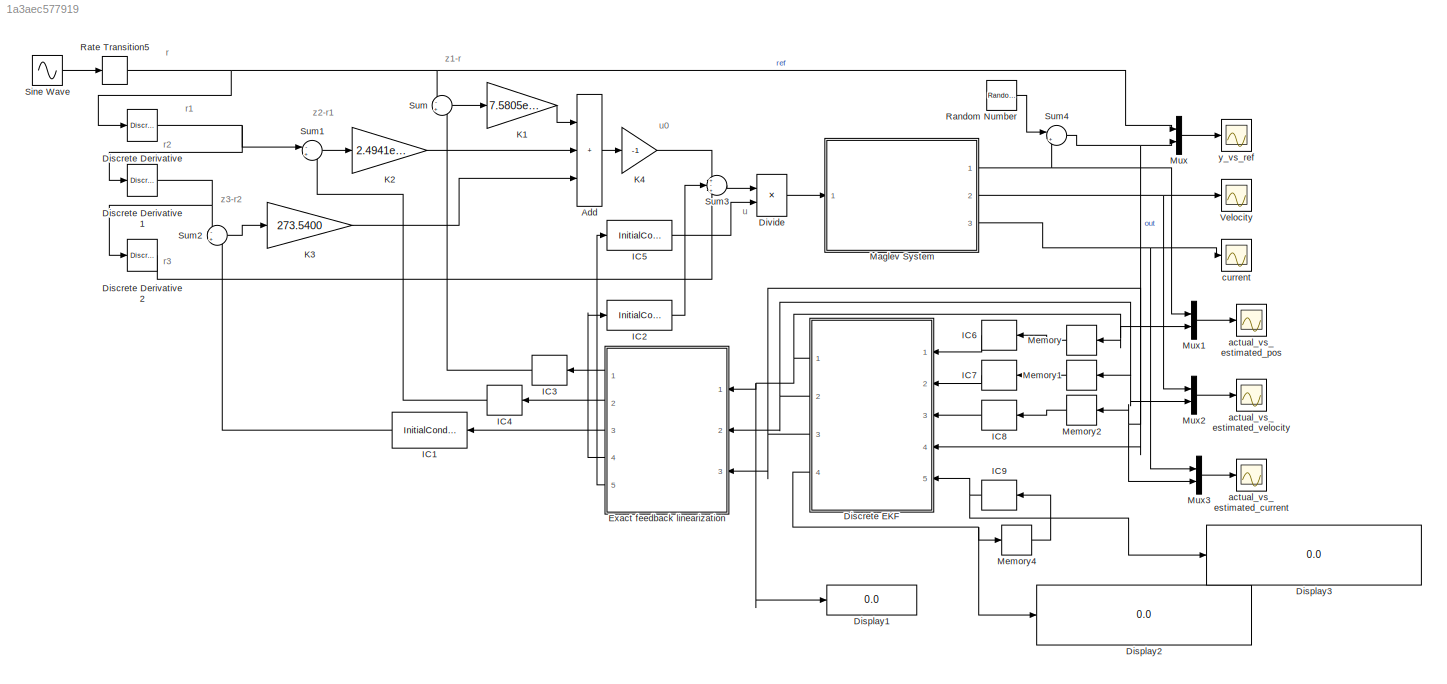
MODEL slx_1a3aec577919
KIND model
CONFIG AbsTol = auto
CONFIG EnableMultiTasking = off
CONFIG FixedStep = 0.5
CONFIG MaxStep = auto
CONFIG MinStep = auto
CONFIG RelTol = 1e-3
CONFIG SampleTimeConstraint = Unconstrained
CONFIG SolverName = FixedStepAuto
CONFIG StartTime = 0.0
CONFIG StopTime = 2
BLOCK [Sum] Add
  IconShape = rectangular
  Inputs = +++
  Ports = [3, 1]
BLOCK [Reference] Discrete Derivative  REF=simulink/Discrete/Discrete Derivative
  Ports = [1, 1]
  SourceBlock = simulink/Discrete/Discrete Derivative
  SourceProductBaseCode = SL
  SourceType = Discrete Derivative
BLOCK [Reference] Discrete Derivative1  REF=simulink/Discrete/Discrete Derivative
  Ports = [1, 1]
  SourceBlock = simulink/Discrete/Discrete Derivative
  SourceProductBaseCode = SL
  SourceType = Discrete Derivative
BLOCK [Reference] Discrete Derivative2  REF=simulink/Discrete/Discrete Derivative
  Ports = [1, 1]
  SourceBlock = simulink/Discrete/Discrete Derivative
  SourceProductBaseCode = SL
  SourceType = Discrete Derivative
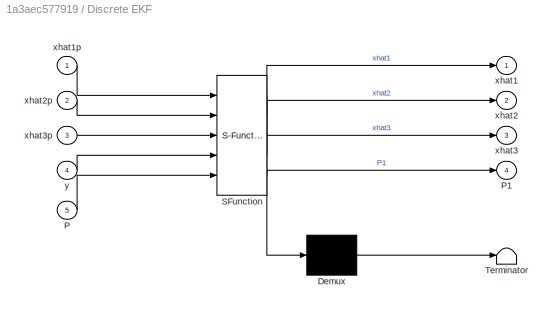
BLOCK [SubSystem] Discrete EKF
  ErrorFcn = Stateflow.Translate.translate
  PermitHierarchicalResolution = ExplicitOnly
  Ports = [5, 4]
  RequestExecContextInheritance = off
  SFBlockType = MATLAB Function
  TreatAsAtomicUnit = on
BLOCK [Demux] Discrete EKF/ Demux 
  Outputs = 1
  Ports = [1, 1]
BLOCK [S-Function] Discrete EKF/ SFunction 
  EnableBusSupport = on
  FunctionName = sf_sfun
  PortCounts = [5 5]
  Ports = [5, 5]
  SFcnIsStateOwnerBlock = off
  SFunctionDeploymentMode = off
  Tag = Stateflow S-Function 2
BLOCK [Terminator] Discrete EKF/ Terminator 
BLOCK [Inport] Discrete EKF/P
  Port = 5
BLOCK [Outport] Discrete EKF/P1
  Port = 4
BLOCK [Outport] Discrete EKF/xhat1
BLOCK [Inport] Discrete EKF/xhat1p
BLOCK [Outport] Discrete EKF/xhat2
  Port = 2
BLOCK [Inport] Discrete EKF/xhat2p
  Port = 2
BLOCK [Outport] Discrete EKF/xhat3
  Port = 3
BLOCK [Inport] Discrete EKF/xhat3p
  Port = 3
BLOCK [Inport] Discrete EKF/y
  Port = 4
BLOCK [Display] Display1
  Decimation = 1
  Ports = [1]
BLOCK [Display] Display2
  Decimation = 1
  Ports = [1]
BLOCK [Display] Display3
  Decimation = 1
  Ports = [1]
BLOCK [Product] Divide
  Inputs = */
  Ports = [2, 1]
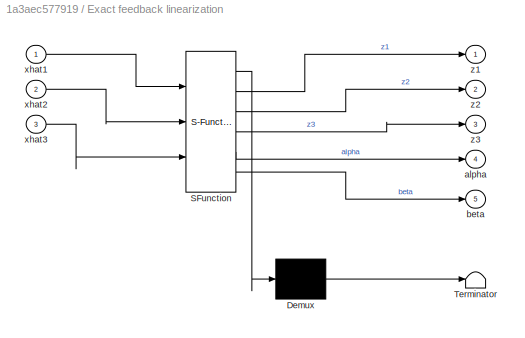
BLOCK [SubSystem] Exact feedback linearization 
  ErrorFcn = Stateflow.Translate.translate
  PermitHierarchicalResolution = ExplicitOnly
  Ports = [3, 5]
  RequestExecContextInheritance = off
  SFBlockType = MATLAB Function
  TreatAsAtomicUnit = on
BLOCK [Demux] Exact feedback linearization / Demux 
  Outputs = 1
  Ports = [1, 1]
BLOCK [S-Function] Exact feedback linearization / SFunction 
  EnableBusSupport = on
  FunctionName = sf_sfun
  PortCounts = [3 6]
  Ports = [3, 6]
  SFcnIsStateOwnerBlock = off
  SFunctionDeploymentMode = off
  Tag = Stateflow S-Function 1
BLOCK [Terminator] Exact feedback linearization / Terminator 
BLOCK [Outport] Exact feedback linearization /alpha
  Port = 4
BLOCK [Outport] Exact feedback linearization /beta
  Port = 5
BLOCK [Inport] Exact feedback linearization /xhat1
BLOCK [Inport] Exact feedback linearization /xhat2
  Port = 2
BLOCK [Inport] Exact feedback linearization /xhat3
  Port = 3
BLOCK [Outport] Exact feedback linearization /z1
BLOCK [Outport] Exact feedback linearization /z2
  Port = 2
BLOCK [Outport] Exact feedback linearization /z3
  Port = 3
BLOCK [InitialCondition] IC1
  Value = 1.7764e-15
BLOCK [InitialCondition] IC2
  Value = -102.8932
BLOCK [InitialCondition] IC3
  Value = 0.0095
BLOCK [InitialCondition] IC4
  Value = 0
BLOCK [InitialCondition] IC5
  Value = 1.9015e+03
BLOCK [InitialCondition] IC6
  Value = 0.0095
BLOCK [InitialCondition] IC7
  Value = 0
BLOCK [InitialCondition] IC8
  Value = 0.8400
BLOCK [InitialCondition] IC9
  Value = [0.1 0 0;0 0.1 0;0 0 0.1]
BLOCK [Gain] K1
  Gain = 7.5805e+05
BLOCK [Gain] K2
  Gain = 2.4941e+04
BLOCK [Gain] K3
  Gain = 273.5400
BLOCK [Gain] K4
  Gain = -1
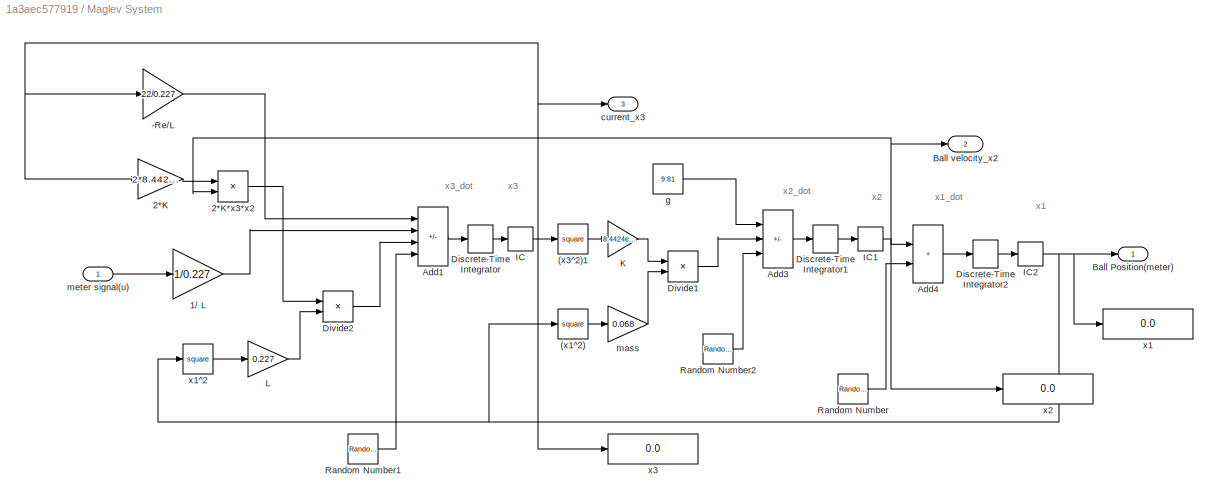
BLOCK [SubSystem] Maglev System
  Ports = [1, 3]
  RequestExecContextInheritance = off
BLOCK [Math] Maglev System/(x1^2)
  Operator = square
  Ports = [1, 1]
BLOCK [Math] Maglev System/(x3^2)1
  Operator = square
  Ports = [1, 1]
BLOCK [Gain] Maglev System/-Re//L
  Gain = 22/0.227
BLOCK [Gain] Maglev System/1//	L
  Gain = 1/0.227
BLOCK [Gain] Maglev System/2*K
  Gain = 2*8.4424e-05
BLOCK [Product] Maglev System/2*K*x3*x2
  Ports = [2, 1]
BLOCK [Sum] Maglev System/Add1
  IconShape = rectangular
  Inputs = -+++
  Ports = [4, 1]
BLOCK [Sum] Maglev System/Add3
  IconShape = rectangular
  Inputs = +-+
  Ports = [3, 1]
BLOCK [Sum] Maglev System/Add4
  IconShape = rectangular
  Ports = [2, 1]
BLOCK [Outport] Maglev System/Ball Position(meter)
BLOCK [Outport] Maglev System/Ball velocity_x2
  Port = 2
BLOCK [DiscreteIntegrator] Maglev System/Discrete-Time Integrator
  ICPrevOutput = DiscIntNeverNeededParam
  ICPrevScaledInput = DiscIntNeverNeededParam
  InitialConditionSetting = Auto
  Ports = [1, 1]
  SampleTime = -1
BLOCK [DiscreteIntegrator] Maglev System/Discrete-Time Integrator1
  ICPrevOutput = DiscIntNeverNeededParam
  ICPrevScaledInput = DiscIntNeverNeededParam
  InitialConditionSetting = Auto
  Ports = [1, 1]
  SampleTime = -1
BLOCK [DiscreteIntegrator] Maglev System/Discrete-Time Integrator2
  ICPrevOutput = DiscIntNeverNeededParam
  ICPrevScaledInput = DiscIntNeverNeededParam
  InitialConditionSetting = Auto
  Ports = [1, 1]
  SampleTime = -1
BLOCK [Product] Maglev System/Divide1
  Inputs = */
  Ports = [2, 1]
BLOCK [Product] Maglev System/Divide2
  Inputs = */
  Ports = [2, 1]
BLOCK [InitialCondition] Maglev System/IC
  Value = 0.8
BLOCK [InitialCondition] Maglev System/IC1
  Value = 0
BLOCK [InitialCondition] Maglev System/IC2
  Value = 0.009
BLOCK [Gain] Maglev System/K
  Gain = 8.4424e-05
BLOCK [Gain] Maglev System/L
  Gain = 0.227
BLOCK [RandomNumber] Maglev System/Random Number
  SampleTime = 0.5
  Variance = 0.0001
BLOCK [RandomNumber] Maglev System/Random Number1
  SampleTime = 0.5
  Variance = 0.0001
BLOCK [RandomNumber] Maglev System/Random Number2
  SampleTime = 0.5
  Variance = 0.0001
BLOCK [Outport] Maglev System/current_x3
  Port = 3
BLOCK [Constant] Maglev System/g
  SampleTime = 0.5
  Value = 9.81
BLOCK [Gain] Maglev System/mass
  Gain = 0.068
BLOCK [Inport] Maglev System/meter signal(u)
BLOCK [Display] Maglev System/x1
  Decimation = 1
  Ports = [1]
BLOCK [Math] Maglev System/x1^2
  Operator = square
  Ports = [1, 1]
BLOCK [Display] Maglev System/x2
  Decimation = 1
  Ports = [1]
BLOCK [Display] Maglev System/x3
  Decimation = 1
  Ports = [1]
BLOCK [Memory] Memory
BLOCK [Memory] Memory1
BLOCK [Memory] Memory2
BLOCK [Memory] Memory4
BLOCK [Mux] Mux
  DisplayOption = bar
  Inputs = 2
  Ports = [2, 1]
BLOCK [Mux] Mux1
  DisplayOption = bar
  Inputs = 2
  Ports = [2, 1]
BLOCK [Mux] Mux2
  DisplayOption = bar
  Inputs = 2
  Ports = [2, 1]
BLOCK [Mux] Mux3
  DisplayOption = bar
  Inputs = 2
  Ports = [2, 1]
BLOCK [RandomNumber] Random Number
  SampleTime = 0.5
  Variance = 5e-6
BLOCK [RateTransition] Rate Transition5
  OutPortSampleTime = 0.5
BLOCK [Sin] Sine Wave
  Ports = [0, 1]
  SampleTime = 0
BLOCK [Sum] Sum
  Inputs = -+
  Ports = [2, 1]
BLOCK [Sum] Sum1
  Inputs = -+
  Ports = [2, 1]
BLOCK [Sum] Sum2
  Inputs = -+
  Ports = [2, 1]
BLOCK [Sum] Sum3
  Inputs = +-+
  Ports = [3, 1]
BLOCK [Sum] Sum4
  Inputs = |++
  NameLocation = top
  Ports = [2, 1]
BLOCK [Scope] Velocity
  Floating = off
  NumInputPorts = 1
  Ports = [1]
  ScopeSpecificationString = Simulink.scopes.TimeScopeBlockCfg('CurrentConfiguration', extmgr.ConfigurationSet(extmgr.Configuration('Core','General UI',true),extmgr.Configuration('Core','Source UI',true),extmgr.Configuration('Sources','WiredSimulink',true,'DataLoggingVariableName','ScopeData1'),extmgr.Configuration('Visuals','Time Domain',true,'SerializedDisplays',{struct('MinYLimReal','-45431.80941','MaxYLimReal','5047.98551...<+1437ch>
BLOCK [Scope] actual_vs_estimated_current
  Floating = off
  NumInputPorts = 1
  Ports = [1]
  ScopeSpecificationString = Simulink.scopes.TimeScopeBlockCfg('CurrentConfiguration', extmgr.ConfigurationSet(extmgr.Configuration('Core','General UI',true),extmgr.Configuration('Core','Source UI',true),extmgr.Configuration('Sources','WiredSimulink',true,'DataLoggingVariableName','ScopeData5'),extmgr.Configuration('Visuals','Time Domain',true,'SerializedDisplays',{struct('MinYLimReal','-1.00000','MaxYLimReal','1.00000','YLab...<+1395ch>
BLOCK [Scope] actual_vs_estimated_pos
  Floating = off
  NumInputPorts = 1
  Ports = [1]
  ScopeSpecificationString = Simulink.scopes.TimeScopeBlockCfg('CurrentConfiguration', extmgr.ConfigurationSet(extmgr.Configuration('Core','General UI',true),extmgr.Configuration('Core','Source UI',true),extmgr.Configuration('Sources','WiredSimulink',true,'DataLoggingVariableName','ScopeData3'),extmgr.Configuration('Visuals','Time Domain',true,'SerializedDisplays',{struct('MinYLimReal','-22715.89194','MaxYLimReal','2524.00129...<+1450ch>
BLOCK [Scope] actual_vs_estimated_velocity
  Floating = off
  NumInputPorts = 1
  Ports = [1]
  ScopeSpecificationString = Simulink.scopes.TimeScopeBlockCfg('CurrentConfiguration', extmgr.ConfigurationSet(extmgr.Configuration('Core','General UI',true),extmgr.Configuration('Core','Source UI',true),extmgr.Configuration('Sources','WiredSimulink',true,'DataLoggingVariableName','ScopeData4'),extmgr.Configuration('Visuals','Time Domain',true,'SerializedDisplays',{struct('MinYLimReal','-16780523121095790907325396438965414729...<+1839ch>
BLOCK [Scope] current
  Floating = off
  NumInputPorts = 1
  Ports = [1]
  ScopeSpecificationString = Simulink.scopes.TimeScopeBlockCfg('CurrentConfiguration', extmgr.ConfigurationSet(extmgr.Configuration('Core','General UI',true),extmgr.Configuration('Core','Source UI',true),extmgr.Configuration('Sources','WiredSimulink',true,'DataLoggingVariableName','ScopeData2'),extmgr.Configuration('Visuals','Time Domain',true,'SerializedDisplays',{struct('MinYLimReal','-52.95643','MaxYLimReal','6.77294','YLa...<+1413ch>
BLOCK [Scope] y_vs_ref
  Floating = off
  NumInputPorts = 1
  Ports = [1]
  ScopeSpecificationString = Simulink.scopes.TimeScopeBlockCfg('CurrentConfiguration', extmgr.ConfigurationSet(extmgr.Configuration('Core','General UI',true),extmgr.Configuration('Core','Source UI',true),extmgr.Configuration('Sources','WiredSimulink',true),extmgr.Configuration('Visuals','Time Domain',true,'SerializedDisplays',{struct('MinYLimReal','-22716.01424','MaxYLimReal','2525.10991','YLabelReal','','MinYLimMag','   0.00...<+1382ch>
ANNOTATION (root): u0
ANNOTATION (root): u
ANNOTATION (root): z2-r1
ANNOTATION (root): z3-r2
ANNOTATION (root): r1
ANNOTATION (root): r2
ANNOTATION (root): r3
ANNOTATION (root): r
ANNOTATION (root): z1-r
ANNOTATION Maglev System: x1
ANNOTATION Maglev System: x1_dot
ANNOTATION Maglev System: x2
ANNOTATION Maglev System: x2_dot
ANNOTATION Maglev System: x3
ANNOTATION Maglev System: x3_dot
LINE Add:1 -> K4:1
NET Discrete Derivative1:1 -> Discrete Derivative2:1, Sum2:1
LINE Discrete Derivative2:1 -> Sum3:3
NET Discrete Derivative:1 -> Discrete Derivative1:1, Sum1:1
NET Discrete EKF:1 -> Display1:1, Exact feedback linearization :1, Memory:1, Mux1:2
NET Discrete EKF:2 -> Exact feedback linearization :2, Memory1:1, Mux2:2
NET Discrete EKF:3 -> Exact feedback linearization :3, Memory2:1, Mux3:2
NET Discrete EKF:4 -> Display2:1, Memory4:1
LINE Divide:1 -> Maglev System:1
LINE Exact feedback linearization :1 -> IC3:1
LINE Exact feedback linearization :2 -> IC4:1
LINE Exact feedback linearization :3 -> IC1:1
LINE Exact feedback linearization :4 -> IC2:1
LINE Exact feedback linearization :5 -> IC5:1
LINE IC1:1 -> Sum2:2
LINE IC2:1 -> Sum3:2
LINE IC3:1 -> Sum:2
LINE IC4:1 -> Sum1:2
LINE IC5:1 -> Divide:2
LINE IC6:1 -> Discrete EKF:1
LINE IC7:1 -> Discrete EKF:2
LINE IC8:1 -> Discrete EKF:3
NET IC9:1 -> Discrete EKF:5, Display3:1
LINE K1:1 -> Add:1
LINE K2:1 -> Add:2
LINE K3:1 -> Add:3
LINE K4:1 -> Sum3:1
LINE Maglev System/(x1^2):1 -> Maglev System/mass:1
LINE Maglev System/(x3^2)1:1 -> Maglev System/K:1
LINE Maglev System/-Re//L:1 -> Maglev System/Add1:1
LINE Maglev System/1//	L:1 -> Maglev System/Add1:2
LINE Maglev System/2*K*x3*x2:1 -> Maglev System/Divide2:1
LINE Maglev System/2*K:1 -> Maglev System/2*K*x3*x2:1
LINE Maglev System/Add1:1 -> Maglev System/Discrete-Time Integrator:1
LINE Maglev System/Add3:1 -> Maglev System/Discrete-Time Integrator1:1
LINE Maglev System/Add4:1 -> Maglev System/Discrete-Time Integrator2:1
LINE Maglev System/Discrete-Time Integrator1:1 -> Maglev System/IC1:1
LINE Maglev System/Discrete-Time Integrator2:1 -> Maglev System/IC2:1
LINE Maglev System/Discrete-Time Integrator:1 -> Maglev System/IC:1
LINE Maglev System/Divide1:1 -> Maglev System/Add3:2
LINE Maglev System/Divide2:1 -> Maglev System/Add1:3
NET Maglev System/IC1:1 -> Maglev System/2*K*x3*x2:2, Maglev System/Add4:1, Maglev System/Ball velocity_x2:1, Maglev System/x2:1
NET Maglev System/IC2:1 -> Maglev System/(x1^2):1, Maglev System/Ball Position(meter):1, Maglev System/x1:1, Maglev System/x1^2:1
NET Maglev System/IC:1 -> Maglev System/(x3^2)1:1, Maglev System/-Re//L:1, Maglev System/2*K:1, Maglev System/current_x3:1, Maglev System/x3:1
LINE Maglev System/K:1 -> Maglev System/Divide1:1
LINE Maglev System/L:1 -> Maglev System/Divide2:2
LINE Maglev System/Random Number1:1 -> Maglev System/Add1:4
LINE Maglev System/Random Number2:1 -> Maglev System/Add3:3
LINE Maglev System/Random Number:1 -> Maglev System/Add4:2
LINE Maglev System/g:1 -> Maglev System/Add3:1
LINE Maglev System/mass:1 -> Maglev System/Divide1:2
LINE Maglev System/meter signal(u):1 -> Maglev System/1//	L:1
LINE Maglev System/x1^2:1 -> Maglev System/L:1
NET Maglev System:1 -> Mux1:1, Sum4:2
NET Maglev System:2 -> Mux2:1, Velocity:1
NET Maglev System:3 -> Mux3:1, current:1
LINE Memory1:1 -> IC7:1
LINE Memory2:1 -> IC8:1
LINE Memory4:1 -> IC9:1
LINE Memory:1 -> IC6:1
LINE Mux1:1 -> actual_vs_estimated_pos:1
LINE Mux2:1 -> actual_vs_estimated_velocity:1
LINE Mux3:1 -> actual_vs_estimated_current:1
LINE Mux:1 -> y_vs_ref:1
LINE Random Number:1 -> Sum4:1
NET Rate Transition5:1 -> Discrete Derivative:1, Mux:1, Sum:1
LINE Sine Wave:1 -> Rate Transition5:1
LINE Sum1:1 -> K2:1
LINE Sum2:1 -> K3:1
LINE Sum3:1 -> Divide:1
NET Sum4:1 -> Discrete EKF:4, Mux:2
LINE Sum:1 -> K1:1
note: NET lines group one-source signal fan-out (src -> all destinations, sorted); 1:1 wires keep LINE
CHART Exact feedback linearization  states=1 transitions=1
  STATE_LABEL 'eML_blk_kernel()'
  STATE_LABEL 'SCRIPT:\nfunction [z1,z2,z3,alpha,beta] = Exact_fb_linearization(xhat1,xhat2,xhat3)\n\nx0 = 0.009;                               %initial position in meter\nmass = 0.068;                            %Kg (mass of the ball))\ng = 9.81;\nL0 = 0.018761;                          %Henry (Kg)(m^2)(s^-2)(A^-2)\nLind=0.227;                              %Henry(in terms of x as a meter)\nK = (x0*L0)/2;               ...<+402ch>'
CHART Discrete EKF states=1 transitions=1
  STATE_LABEL 'eML_blk_kernel()'
  STATE_LABEL 'SCRIPT:\nfunction [xhat1,xhat2,xhat3,P1]  = Discrete_EKF(xhat1p,xhat2p,xhat3p,y,P)\n%*********Constants***********\nx0 = 0.009;                               %initial position in meter\nmass = 0.068;                            %Kg (mass of the ball))\nL0 = 0.018761;                          %Henry (Kg)(m^2)(s^-2)(A^-2)\nLind=0.227;                              %Henry(in terms of x as a meter)\nK = (x0*L0...<+786ch>'
CHART  states=0 transitions=0
CHART  states=0 transitions=0
